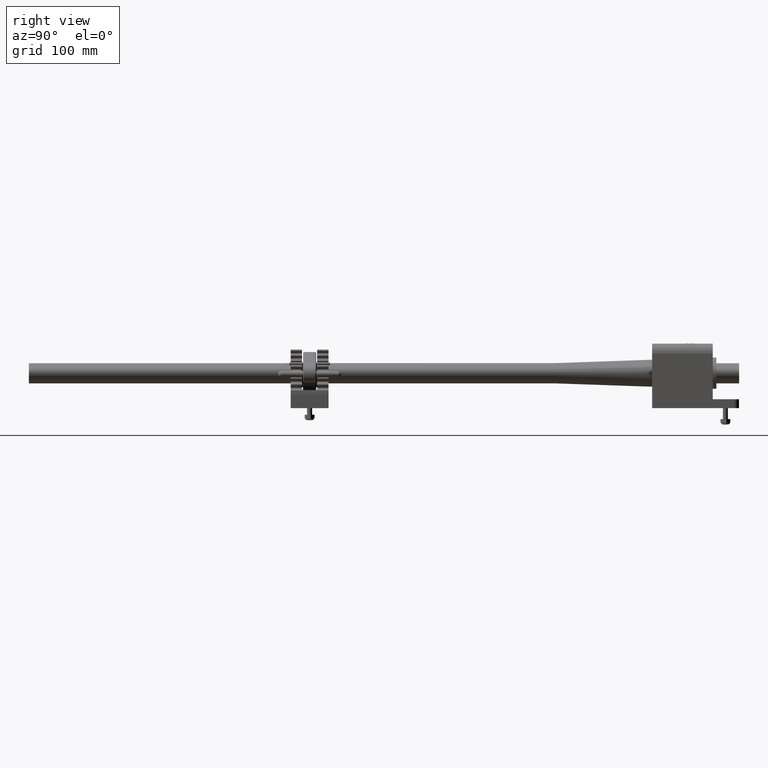
[diagram: clean part render]
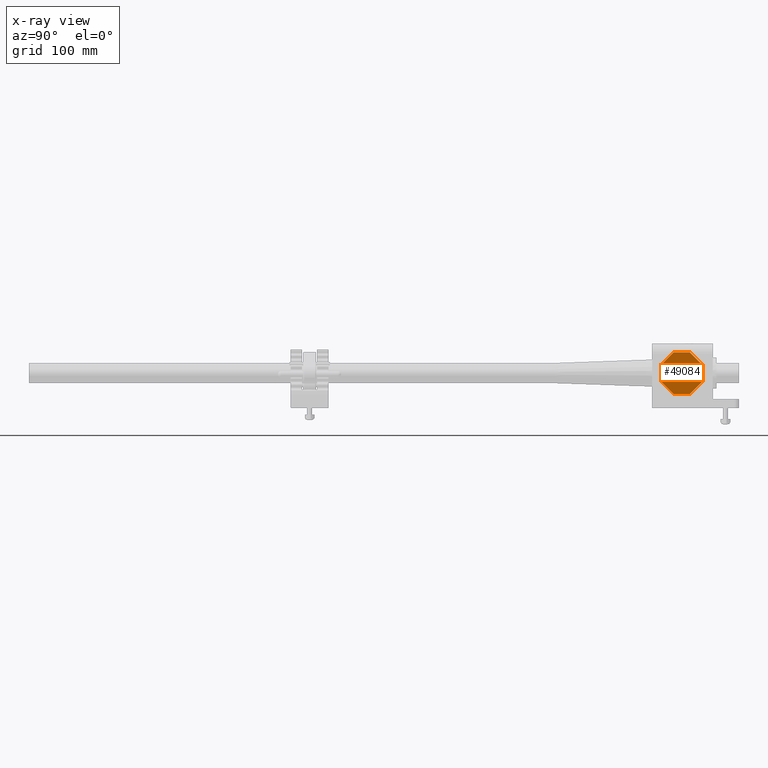
[diagram: x-ray — body ghosted, one internal face saturated and labeled with its STEP entity id]
A machine part, right view, then the same camera in x-ray: the body is ghosted and one INTERNAL B-rep face — a face not visible from any outside direction — is saturated and labeled: STEP entity #49084.
In plain terms, the highlighted planar face has unit normal (-1, 0, 0).
Its self-contained STEP definition (entity closure, byte-faithful):
#1083 = VERTEX_POINT ( 'NONE', #14313 ) ;
#1084 = VERTEX_POINT ( 'NONE', #5654 ) ;
#1098 = VERTEX_POINT ( 'NONE', #5778 ) ;
#1099 = VERTEX_POINT ( 'NONE', #5776 ) ;
#1103 = VERTEX_POINT ( 'NONE', #5772 ) ;
#1105 = VERTEX_POINT ( 'NONE', #5770 ) ;
#1148 = VERTEX_POINT ( 'NONE', #5721 ) ;
#1173 = VERTEX_POINT ( 'NONE', #5694 ) ;
#5654 = CARTESIAN_POINT ( 'NONE',  ( 3.325000000000000200, 31.88424837840403800, 1.027499999999999400 ) ) ;
#5694 = CARTESIAN_POINT ( 'NONE',  ( 3.325000000000000200, 32.68575162159595500, 1.027499999999999400 ) ) ;
#5721 = CARTESIAN_POINT ( 'NONE',  ( 3.325000000000000200, 33.31250000000000000, 0.4007516215958937800 ) ) ;
#5770 = CARTESIAN_POINT ( 'NONE',  ( 3.325000000000000200, 31.25749999999999700, -0.4007516215959628900 ) ) ;
#5772 = CARTESIAN_POINT ( 'NONE',  ( 3.325000000000000200, 31.25749999999999700, 0.4007516215959623900 ) ) ;
#5776 = CARTESIAN_POINT ( 'NONE',  ( 3.325000000000000200, 32.68575162159596200, -1.027499999999999900 ) ) ;
#5778 = CARTESIAN_POINT ( 'NONE',  ( 3.325000000000000200, 33.31250000000000000, -0.4007516215959746600 ) ) ;
#9179 = CARTESIAN_POINT ( 'NONE',  ( 3.325000000000000200, 33.49999999999997200, 1.027499999999999400 ) ) ;
#9180 = DIRECTION ( 'NONE',  ( 0.0000000000000000000, -1.000000000000000000, -5.621086406716586300E-017 ) ) ;
#9187 = CARTESIAN_POINT ( 'NONE',  ( 3.325000000000000200, 31.25749999999999700, 1.214999999999999400 ) ) ;
#9188 = DIRECTION ( 'NONE',  ( 0.0000000000000000000, 0.0000000000000000000, -1.000000000000000000 ) ) ;
#9195 = CARTESIAN_POINT ( 'NONE',  ( 3.325000000000000200, 31.57087418920200200, -0.7141258107979681100 ) ) ;
#9196 = DIRECTION ( 'NONE',  ( 0.0000000000000000000, 0.7071067811865479100, -0.7071067811865471300 ) ) ;
#9197 = CARTESIAN_POINT ( 'NONE',  ( 3.325000000000000200, 32.99912581079792100, 0.7141258107980015300 ) ) ;
#9198 = DIRECTION ( 'NONE',  ( 0.0000000000000000000, -0.7071067811865131600, 0.7071067811865817700 ) ) ;
#9199 = CARTESIAN_POINT ( 'NONE',  ( 3.325000000000000200, 33.31250000000000000, 1.214999999999999400 ) ) ;
#9200 = DIRECTION ( 'NONE',  ( 0.0000000000000000000, 0.0000000000000000000, 1.000000000000000000 ) ) ;
#9201 = CARTESIAN_POINT ( 'NONE',  ( 3.325000000000000200, 32.78587418920200500, 1.929125810797965600 ) ) ;
#9202 = DIRECTION ( 'NONE',  ( 0.0000000000000000000, -0.7071067811865482400, -0.7071067811865468000 ) ) ;
#9203 = CARTESIAN_POINT ( 'NONE',  ( 3.325000000000000200, 33.49999999999997200, -1.027499999999999900 ) ) ;
#9204 = DIRECTION ( 'NONE',  ( 0.0000000000000000000, 1.000000000000000000, 5.621086406716586300E-017 ) ) ;
#9205 = CARTESIAN_POINT ( 'NONE',  ( 3.325000000000000200, 34.21412581079797400, 0.5008741892019796800 ) ) ;
#9206 = DIRECTION ( 'NONE',  ( 0.0000000000000000000, 0.7071067811865552300, 0.7071067811865396900 ) ) ;
#12903 = AXIS2_PLACEMENT_3D ( 'NONE', #27520, #27530, #27531 ) ;
#14313 = CARTESIAN_POINT ( 'NONE',  ( 3.325000000000000200, 31.88424837840403800, -1.027500000000000500 ) ) ;
#19297 = LINE ( 'NONE', #9179, #19298 ) ;
#19298 = VECTOR ( 'NONE', #9180, 39.37007874015748100 ) ;
#19304 = LINE ( 'NONE', #9187, #19305 ) ;
#19305 = VECTOR ( 'NONE', #9188, 39.37007874015748100 ) ;
#19312 = LINE ( 'NONE', #9195, #19313 ) ;
#19313 = VECTOR ( 'NONE', #9196, 39.37007874015748100 ) ;
#19314 = LINE ( 'NONE', #9197, #19315 ) ;
#19315 = VECTOR ( 'NONE', #9198, 39.37007874015748900 ) ;
#19316 = LINE ( 'NONE', #9199, #19317 ) ;
#19317 = VECTOR ( 'NONE', #9200, 39.37007874015748100 ) ;
#19318 = LINE ( 'NONE', #9201, #25659 ) ;
#25659 = VECTOR ( 'NONE', #9202, 39.37007874015748100 ) ;
#25660 = LINE ( 'NONE', #9203, #25661 ) ;
#25661 = VECTOR ( 'NONE', #9204, 39.37007874015748100 ) ;
#25662 = LINE ( 'NONE', #9205, #25663 ) ;
#25663 = VECTOR ( 'NONE', #9206, 39.37007874015748900 ) ;
#27520 = CARTESIAN_POINT ( 'NONE',  ( 3.325000000000000200, 33.49999999999997200, 1.214999999999999400 ) ) ;
#27525 = PLANE ( 'NONE',  #12903 ) ;
#27530 = DIRECTION ( 'NONE',  ( -1.000000000000000000, 0.0000000000000000000, 0.0000000000000000000 ) ) ;
#27531 = DIRECTION ( 'NONE',  ( 0.0000000000000000000, 0.0000000000000000000, 1.000000000000000000 ) ) ;
#30174 = ORIENTED_EDGE ( 'NONE', *, *, #35143, .T. ) ;
#30175 = ORIENTED_EDGE ( 'NONE', *, *, #35142, .T. ) ;
#30176 = ORIENTED_EDGE ( 'NONE', *, *, #35133, .T. ) ;
#30177 = ORIENTED_EDGE ( 'NONE', *, *, #35144, .T. ) ;
#30178 = ORIENTED_EDGE ( 'NONE', *, *, #35137, .T. ) ;
#30179 = ORIENTED_EDGE ( 'NONE', *, *, #35141, .T. ) ;
#30180 = ORIENTED_EDGE ( 'NONE', *, *, #35145, .T. ) ;
#30181 = ORIENTED_EDGE ( 'NONE', *, *, #35146, .T. ) ;
#31307 = EDGE_LOOP ( 'NONE', ( #30174, #30175, #30176, #30177, #30178, #30179, #30180, #30181 ) ) ;
#35133 = EDGE_CURVE ( 'NONE', #1173, #1084, #19297, .T. ) ;
#35137 = EDGE_CURVE ( 'NONE', #1103, #1105, #19304, .T. ) ;
#35141 = EDGE_CURVE ( 'NONE', #1105, #1083, #19312, .T. ) ;
#35142 = EDGE_CURVE ( 'NONE', #1148, #1173, #19314, .T. ) ;
#35143 = EDGE_CURVE ( 'NONE', #1098, #1148, #19316, .T. ) ;
#35144 = EDGE_CURVE ( 'NONE', #1084, #1103, #19318, .T. ) ;
#35145 = EDGE_CURVE ( 'NONE', #1083, #1099, #25660, .T. ) ;
#35146 = EDGE_CURVE ( 'NONE', #1099, #1098, #25662, .T. ) ;
#41093 = FACE_OUTER_BOUND ( 'NONE', #31307, .T. ) ;
#49084 = ADVANCED_FACE ( 'NONE', ( #41093 ), #27525, .F. ) ;